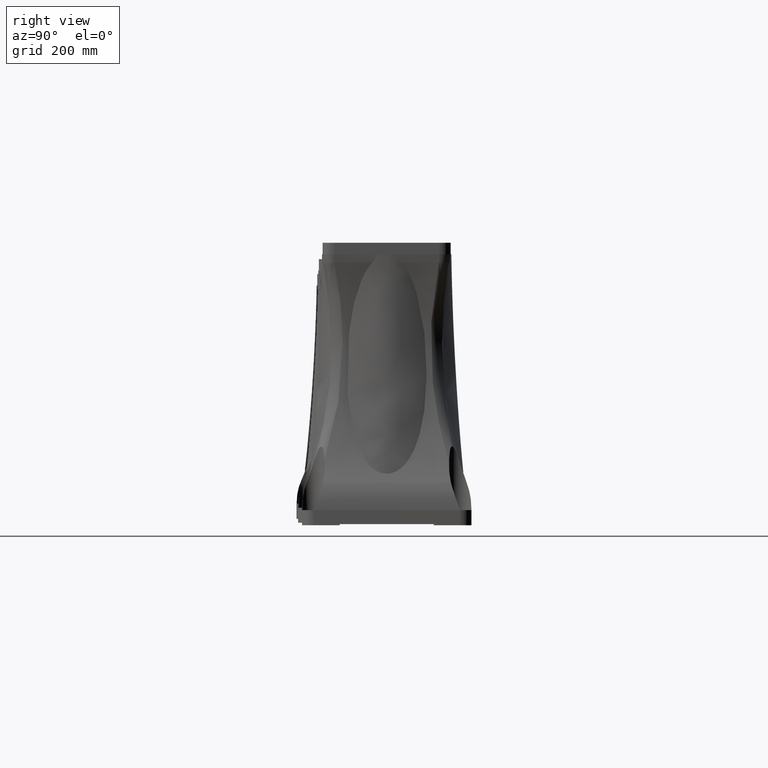
[diagram: clean part render]
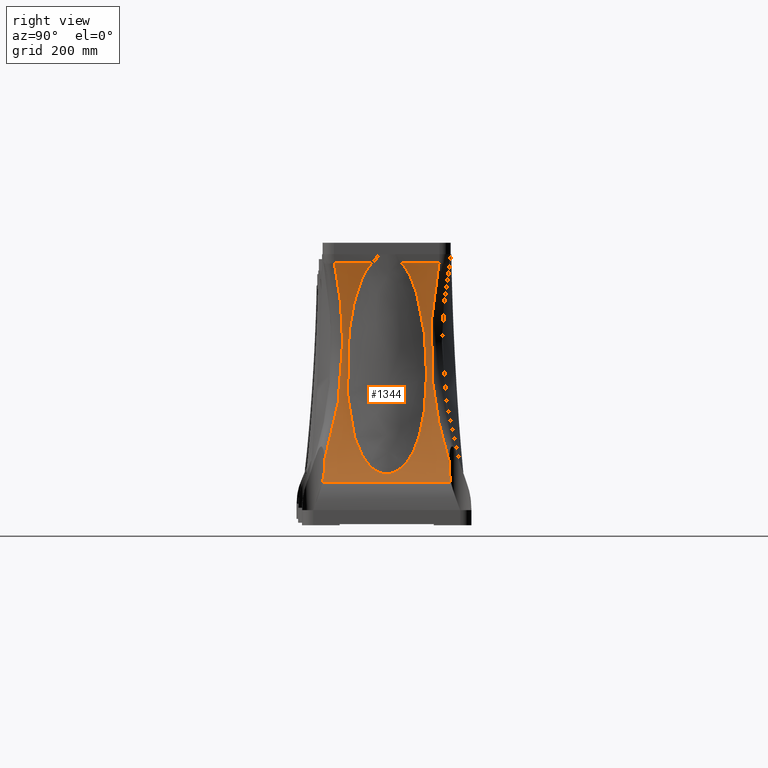
[diagram: same view with one face highlighted and labeled with its STEP entity id]
A machine part, right view. The second image highlights one B-rep face of the part: STEP entity #1344.
In plain terms, the highlighted face is a SurfaceOfExtrusion surface.
Its self-contained STEP definition (entity closure, byte-faithful):
#1344=ADVANCED_FACE('',(#2316),#2317,.F.);
#2316=FACE_OUTER_BOUND('',#7624,.T.);
#2317=SURFACE_OF_LINEAR_EXTRUSION('',#7625,#7626);
#7624=EDGE_LOOP('',(#13118,#13119,#13120,#13121,#13122,#13123,#13124,#13125));
#7625=(B_SPLINE_CURVE(3,(#13127,#13128,#13129,#13130,#13131,#13132,#13133),.UNSPECIFIED.,.T.,.F.)B_SPLINE_CURVE_WITH_KNOTS((4,3,4),(0.0,0.5,1.0),.UNSPECIFIED.)RATIONAL_B_SPLINE_CURVE((1.0,0.333333333333334,0.333333333333334,1.0,0.333333333333334,0.333333333333334,1.0))BOUNDED_CURVE()REPRESENTATION_ITEM('')GEOMETRIC_REPRESENTATION_ITEM()CURVE());
#7626=VECTOR('',#13140,1.0);
#13118=ORIENTED_EDGE('',*,*,#15293,.T.);
#13119=ORIENTED_EDGE('',*,*,#15308,.T.);
#13120=ORIENTED_EDGE('',*,*,#15311,.T.);
#13121=ORIENTED_EDGE('',*,*,#15318,.T.);
#13122=ORIENTED_EDGE('',*,*,#15319,.T.);
#13123=ORIENTED_EDGE('',*,*,#15320,.T.);
#13124=ORIENTED_EDGE('',*,*,#15321,.F.);
#13125=ORIENTED_EDGE('',*,*,#15298,.T.);
#13127=CARTESIAN_POINT('',(853.558,-260.555555555553,1949.3719357305));
#13128=CARTESIAN_POINT('',(1853.558,-260.555555555553,1949.3719357305));
#13129=CARTESIAN_POINT('',(1853.558,-260.555555555553,449.8546983205));
#13130=CARTESIAN_POINT('',(853.558,-260.555555555553,449.854698320501));
#13131=CARTESIAN_POINT('',(-146.442,-260.555555555553,449.8546983205));
#13132=CARTESIAN_POINT('',(-146.442,-260.555555555553,1949.3719357305));
#13133=CARTESIAN_POINT('',(853.558,-260.555555555553,1949.3719357305));
#13140=DIRECTION('',(0.0,1.0,0.0));
#15293=EDGE_CURVE('',#17134,#17132,#17135,.F.);
#15298=EDGE_CURVE('',#17138,#17134,#17143,.F.);
#15308=EDGE_CURVE('',#17132,#17160,#17162,.T.);
#15311=EDGE_CURVE('',#17160,#17166,#17167,.T.);
#15318=EDGE_CURVE('',#17166,#17176,#17177,.T.);
#15319=EDGE_CURVE('',#17176,#17178,#17179,.F.);
#15320=EDGE_CURVE('',#17178,#17180,#17181,.F.);
#15321=EDGE_CURVE('',#17138,#17180,#17182,.T.);
#17132=VERTEX_POINT('',#26514);
#17134=VERTEX_POINT('',#26573);
#17135=B_SPLINE_CURVE_WITH_KNOTS('',3,(#26574,#26575,#26576,#26577,#26578,#26579,#26580,#26581,#26582,#26583,#26584,#26585,#26586,#26587,#26588,#26589,#26590,#26591,#26592,#26593,#26594,#26595,#26596,#26597,#26598,#26599,#26600,#26601,#26602,#26603,#26604,#26605,#26606,#26607,#26608,#26609,#26610,#26611,#26612,#26613,#26614,#26615,#26616,#26617,#26618,#26619,#26620,#26621,#26622,#26623,#26624,#26625,#26626,#26627,#26628,#26629),.UNSPECIFIED.,.F.,.F.,(4,1,1,1,1,1,1,1,1,1,1,1,1,1,1,1,1,1,1,1,1,1,1,1,1,1,1,1,1,1,1,1,1,1,1,1,1,1,1,1,1,1,1,1,1,1,1,1,1,1,1,1,1,4),(0.0,0.00523936615068114,0.0104752539837834,0.015707610105446,0.0209363809590649,0.026161512836813,0.0313829518911641,0.0366006441464167,0.041814535510213,0.0470245717850527,0.0522306986798116,0.0574328618212337,0.0626310067654168,0.0678250790093032,0.0730150240021297,0.0782007871568701,0.0833823138616686,0.0885595494912339,0.0937324394182244,0.0989009290245992,0.104064963712945,0.109224488917779,0.114379450116807,0.119529792842168,0.124675462691622,0.156042078851387,0.187316179879086,0.218487359615092,0.24954517601576,0.312185255330251,0.374557056522024,0.437183308711097,0.499666960390337,0.562256915656478,0.624820169362127,0.687346993373282,0.749960622502728,0.781148980853829,0.812397850864699,0.843697986279204,0.875040147907703,0.88460183455568,0.894173014202658,0.903753399149375,0.913342700988941,0.922940630807617,0.932546899386447,0.942161217403643,0.951783295637604,0.961412845170515,0.971049577592337,0.98069320520515,0.990343441227694,1.0),.UNSPECIFIED.);
#17138=VERTEX_POINT('',#26649);
#17143=LINE('',#26695,#26696);
#17160=VERTEX_POINT('',#26969);
#17162=B_SPLINE_CURVE_WITH_KNOTS('',3,(#26990,#26991,#26992,#26993,#26994,#26995,#26996,#26997,#26998,#26999,#27000,#27001),.UNSPECIFIED.,.F.,.F.,(4,2,2,2,2,4),(0.0,0.0152437259500222,0.0304874519000444,0.0457311778500666,0.0533530408250775,0.0609749038000884),.UNSPECIFIED.);
#17166=VERTEX_POINT('',#27039);
#17167=LINE('',#27040,#27041);
#17176=VERTEX_POINT('',#27304);
#17177=B_SPLINE_CURVE_WITH_KNOTS('',3,(#27305,#27306,#27307,#27308,#27309,#27310,#27311,#27312,#27313,#27314,#27315,#27316),.UNSPECIFIED.,.F.,.F.,(4,2,2,2,2,4),(0.0,0.00762186297500722,0.0152437259500144,0.0304874519000289,0.0457311778500433,0.0609749038000578),.UNSPECIFIED.);
#17178=VERTEX_POINT('',#27317);
#17179=B_SPLINE_CURVE_WITH_KNOTS('',3,(#27318,#27319,#27320,#27321,#27322,#27323,#27324,#27325,#27326,#27327,#27328,#27329,#27330,#27331,#27332,#27333,#27334,#27335,#27336,#27337,#27338,#27339,#27340,#27341,#27342,#27343,#27344,#27345,#27346,#27347,#27348,#27349,#27350,#27351,#27352,#27353,#27354,#27355,#27356,#27357,#27358,#27359,#27360,#27361,#27362,#27363,#27364,#27365,#27366,#27367,#27368,#27369,#27370,#27371,#27372,#27373),.UNSPECIFIED.,.F.,.F.,(4,1,1,1,1,1,1,1,1,1,1,1,1,1,1,1,1,1,1,1,1,1,1,1,1,1,1,1,1,1,1,1,1,1,1,1,1,1,1,1,1,1,1,1,1,1,1,1,1,1,1,1,1,4),(0.0,0.00523102212601215,0.0104602604317651,0.0156876697824341,0.0209132049273656,0.0261368205095518,0.0313584710751763,0.0365781110831115,0.041795694914451,0.0470111768820225,0.052224511239893,0.0574356521928759,0.0626445539060407,0.0678511705141853,0.0730554561313237,0.0782573648601597,0.0834568508015307,0.0886538680638535,0.0938483707725489,0.0990403130794449,0.104229649172166,0.109416333283498,0.114600319700735,0.119781562775007,0.124960016930562,0.156298230692831,0.187597029324368,0.218847207300577,0.250039541950548,0.312647426874138,0.375179995296627,0.437737504298935,0.500333204479467,0.56281157232695,0.62544310902325,0.687810552620338,0.750454990188257,0.781509877101654,0.812680105182675,0.84395519686414,0.875324703760604,0.8848274638488,0.89434609207271,0.903880245061612,0.913429578872907,0.922993749234216,0.932572411786721,0.942165222329538,0.95177183706504,0.961391912844967,0.971025107417133,0.980671079672651,0.990329489893459,1.0),.UNSPECIFIED.);
#17180=VERTEX_POINT('',#27374);
#17181=LINE('',#27375,#27376);
#17182=B_SPLINE_CURVE_WITH_KNOTS('',3,(#27377,#27378,#27379,#27380,#27381,#27382,#27383,#27384,#27385,#27386,#27387,#27388,#27389,#27390,#27391,#27392,#27393,#27394,#27395,#27396,#27397,#27398,#27399,#27400,#27401,#27402,#27403,#27404,#27405,#27406,#27407,#27408,#27409,#27410,#27411,#27412,#27413,#27414,#27415,#27416,#27417,#27418,#27419,#27420,#27421,#27422,#27423,#27424,#27425,#27426,#27427,#27428,#27429,#27430,#27431,#27432,#27433,#27434,#27435,#27436,#27437,#27438,#27439,#27440,#27441,#27442,#27443,#27444,#27445,#27446,#27447,#27448,#27449,#27450,#27451,#27452,#27453,#27454,#27455,#27456,#27457,#27458,#27459,#27460,#27461,#27462,#27463,#27464,#27465,#27466,#27467,#27468,#27469,#27470,#27471,#27472,#27473,#27474,#27475,#27476,#27477,#27478,#27479,#27480,#27481,#27482,#27483,#27484,#27485,#27486,#27487,#27488,#27489,#27490,#27491,#27492,#27493,#27494,#27495,#27496,#27497,#27498,#27499,#27500,#27501,#27502,#27503,#27504,#27505,#27506,#27507,#27508,#27509,#27510,#27511,#27512,#27513,#27514,#27515,#27516,#27517,#27518,#27519,#27520,#27521,#27522,#27523,#27524,#27525,#27526,#27527,#27528,#27529,#27530,#27531,#27532,#27533,#27534,#27535,#27536,#27537,#27538,#27539,#27540,#27541,#27542,#27543,#27544,#27545,#27546,#27547,#27548,#27549,#27550),.UNSPECIFIED.,.F.,.F.,(4,2,2,2,2,2,2,2,2,2,2,2,2,2,2,2,2,2,2,2,2,2,2,2,2,2,2,2,2,2,2,2,2,2,2,2,2,2,2,2,2,2,2,2,2,2,2,2,2,2,2,2,2,2,2,2,2,2,2,2,2,2,2,2,2,2,2,2,2,2,2,2,2,2,2,2,2,2,2,2,2,2,2,2,2,2,4),(0.0,0.00981266546631495,0.0196253309326299,0.0294379963989449,0.0392506618652598,0.0490633273315748,0.0588759927978897,0.0785013237305197,0.0981266546631496,0.11775198559578,0.137377316528409,0.147189981994725,0.15700264746104,0.196253309326299,0.235503971191559,0.274754633056818,0.314005294922077,0.353255956787336,0.372881287719966,0.382693953186281,0.392506618652596,0.431757280517856,0.451382611450487,0.471007942383117,0.490633273315747,0.500445938782062,0.510258604248377,0.529883935181007,0.539696600647322,0.549509266113637,0.559321931579952,0.569134597046267,0.574040929779425,0.576494096146003,0.578947262512582,0.588759927978898,0.593666260712056,0.596119427078635,0.598572593445214,0.60838525891153,0.618197924377846,0.620651090744424,0.623104257111003,0.628010589844161,0.637823255310477,0.640276421677056,0.642729588043635,0.647635920776793,0.652542253509951,0.657448586243109,0.667261251709425,0.677073917175741,0.67952708354232,0.681980249908899,0.686886582642057,0.696699248108373,0.706511913574689,0.716324579041005,0.726137244507321,0.745762575439953,0.765387906372585,0.785013237305217,0.804638568237849,0.814451233704165,0.824263899170482,0.863514561035746,0.902765222901011,0.942015884766275,0.98126654663154,1.0205172084968,1.03032987396312,1.04014253942944,1.05976787036207,1.09901853222733,1.11864386315996,1.12845652862628,1.13826919409259,1.15789452502523,1.17751985595786,1.19714518689049,1.2069578523568,1.21186418508996,1.21677051782312,1.22658318328943,1.23639584875575,1.24620851422206,1.25602117968838),.UNSPECIFIED.);
#26514=CARTESIAN_POINT('',(398.976736790507,-175.669416553491,887.38273334859));
#26573=CARTESIAN_POINT('',(374.494363636364,-149.718101010101,1414.30120777476));
#26574=CARTESIAN_POINT('',(398.97673627064,-175.669419039438,887.382735050477));
#26575=CARTESIAN_POINT('',(398.714647091279,-175.391608110318,888.243218780783));
#26576=CARTESIAN_POINT('',(398.190642728681,-174.836170685581,889.963614982275));
#26577=CARTESIAN_POINT('',(397.413238580836,-174.01215340092,892.548716701028));
#26578=CARTESIAN_POINT('',(396.64246637583,-173.195175006409,895.13595432076));
#26579=CARTESIAN_POINT('',(395.878927697971,-172.385870919033,897.725643543584));
#26580=CARTESIAN_POINT('',(395.122465971914,-171.584071050844,900.317607816152));
#26581=CARTESIAN_POINT('',(394.373127038148,-170.789820928108,902.91180238508));
#26582=CARTESIAN_POINT('',(393.630902032048,-170.003108363343,905.508147261225));
#26583=CARTESIAN_POINT('',(392.895796208666,-169.223936617175,908.10657193845));
#26584=CARTESIAN_POINT('',(392.167810521791,-168.452304815378,910.707003432092));
#26585=CARTESIAN_POINT('',(391.446946555734,-167.688213190488,913.309369488753));
#26586=CARTESIAN_POINT('',(390.73320520657,-166.931661678845,915.913597735277));
#26587=CARTESIAN_POINT('',(390.026587036447,-166.182650296097,918.519615914593));
#26588=CARTESIAN_POINT('',(389.327092180149,-165.441179036697,921.12735183062));
#26589=CARTESIAN_POINT('',(388.634720371586,-164.707247900814,923.736733370973));
#26590=CARTESIAN_POINT('',(387.949470938207,-163.98085688709,926.347688508911));
#26591=CARTESIAN_POINT('',(387.27134280417,-163.262005994709,928.960145310377));
#26592=CARTESIAN_POINT('',(386.600334490877,-162.550695222376,931.574031941223));
#26593=CARTESIAN_POINT('',(385.93644411957,-161.846924570333,934.189276668345));
#26594=CARTESIAN_POINT('',(385.279669408624,-161.150694033305,936.805807884802));
#26595=CARTESIAN_POINT('',(384.630007690273,-160.46200362669,939.423554044921));
#26596=CARTESIAN_POINT('',(383.987455855276,-159.780853288958,942.042443934844));
#26597=CARTESIAN_POINT('',(383.352010566347,-159.107243245434,944.662405692617));
#26598=CARTESIAN_POINT('',(382.723667470117,-158.441172652421,947.28337048865));
#26599=CARTESIAN_POINT('',(381.047000681396,-156.663878668335,954.359556125516));
#26600=CARTESIAN_POINT('',(378.420691391733,-153.880216009511,965.924104454555));
#26601=CARTESIAN_POINT('',(375.029293099429,-150.285520890323,982.04130879862));
#26602=CARTESIAN_POINT('',(371.892030253249,-146.959834225362,998.20986075938));
#26603=CARTESIAN_POINT('',(368.027474769586,-142.863018039464,1019.93010986629));
#26604=CARTESIAN_POINT('',(363.811487044753,-138.394868934742,1047.30246083808));
#26605=CARTESIAN_POINT('',(359.737249057079,-134.075263747266,1080.50181765755));
#26606=CARTESIAN_POINT('',(356.666084620888,-130.820699266727,1113.90189256322));
#26607=CARTESIAN_POINT('',(354.598084046203,-128.627764793217,1147.50450911546));
#26608=CARTESIAN_POINT('',(353.540093341768,-127.507125198215,1181.19553489133));
#26609=CARTESIAN_POINT('',(353.493744985587,-127.457169677,1214.92954581105));
#26610=CARTESIAN_POINT('',(354.458920083068,-128.481085641206,1248.63818033732));
#26611=CARTESIAN_POINT('',(356.104416331175,-130.224611660001,1276.63544944363));
#26612=CARTESIAN_POINT('',(357.923509983595,-132.153147075764,1298.94972132888));
#26613=CARTESIAN_POINT('',(359.537504755342,-133.864170322732,1315.62929746225));
#26614=CARTESIAN_POINT('',(361.404758716614,-135.843317620455,1332.28055724523));
#26615=CARTESIAN_POINT('',(363.033183567679,-137.569229034069,1345.03688535234));
#26616=CARTESIAN_POINT('',(364.259058458869,-138.868686637253,1353.92884861762));
#26617=CARTESIAN_POINT('',(364.979679598449,-139.63260183135,1358.98021972598));
#26618=CARTESIAN_POINT('',(365.724278633582,-140.421947813658,1364.02926786511));
#26619=CARTESIAN_POINT('',(366.492872333201,-141.236726529849,1369.07559986755));
#26620=CARTESIAN_POINT('',(367.285472857689,-142.076937674457,1374.11881290736));
#26621=CARTESIAN_POINT('',(368.102087758063,-142.94258057396,1379.15850598436));
#26622=CARTESIAN_POINT('',(368.942724291902,-143.83365829173,1384.19427513658));
#26623=CARTESIAN_POINT('',(369.807372029046,-144.750159299552,1389.22572172949));
#26624=CARTESIAN_POINT('',(370.696068085031,-145.69212676459,1394.25242469332));
#26625=CARTESIAN_POINT('',(371.608653229846,-146.659399453408,1399.27404403228));
#26626=CARTESIAN_POINT('',(372.545683070034,-147.652579820221,1404.28993479812));
#26627=CARTESIAN_POINT('',(373.505023796384,-148.669417199197,1409.3005897494));
#26628=CARTESIAN_POINT('',(374.164511698176,-149.368463429975,1412.63397121848));
#26629=CARTESIAN_POINT('',(374.494363636364,-149.718101010101,1414.30120777477));
#26649=CARTESIAN_POINT('',(374.494363636364,-47.6635983610534,1414.30120777476));
#26695=CARTESIAN_POINT('',(374.494363636364,-260.555555555553,1414.30120777476));
#26696=VECTOR('',#31150,1.0);
#26969=CARTESIAN_POINT('',(418.583,-180.833703379798,829.87739900502));
#26990=CARTESIAN_POINT('',(398.976736790507,-175.669416553491,887.38273334859));
#26991=CARTESIAN_POINT('',(400.470530600832,-175.538898227949,882.49249901168));
#26992=CARTESIAN_POINT('',(402.000070292899,-175.517412399945,877.624243822812));
#26993=CARTESIAN_POINT('',(405.130030658948,-175.724131436443,867.934323654012));
#26994=CARTESIAN_POINT('',(406.730466043668,-175.9519597939,863.112629877312));
#26995=CARTESIAN_POINT('',(410.000947613507,-176.710449359145,853.520171918665));
#26996=CARTESIAN_POINT('',(411.671030522429,-177.240111262895,848.749330514734));
#26997=CARTESIAN_POINT('',(414.226382478751,-178.331866223973,841.636889077153));
#26998=CARTESIAN_POINT('',(415.086524591502,-178.745708438292,839.273408374791));
#26999=CARTESIAN_POINT('',(416.822913967366,-179.692928755375,834.562672933132));
#27000=CARTESIAN_POINT('',(417.699168020508,-180.226114418232,832.21540322674));
#27001=CARTESIAN_POINT('',(418.583,-180.833703379798,829.87739900502));
#27039=CARTESIAN_POINT('',(418.583,159.722592268687,829.87739900502));
#27040=CARTESIAN_POINT('',(418.583,-260.555555555553,829.87739900502));
#27041=VECTOR('',#31153,1.0);
#27304=CARTESIAN_POINT('',(398.976736790515,154.558305442379,887.382733348561));
#27305=CARTESIAN_POINT('',(418.583,159.722592268686,829.87739900502));
#27306=CARTESIAN_POINT('',(417.699168020508,159.11500330712,832.215403226738));
#27307=CARTESIAN_POINT('',(416.822913967367,158.581817644264,834.56267293313));
#27308=CARTESIAN_POINT('',(415.086524591503,157.634597327181,839.273408374786));
#27309=CARTESIAN_POINT('',(414.226382478754,157.220755112862,841.636889077146));
#27310=CARTESIAN_POINT('',(411.671030522432,156.129000151784,848.749330514724));
#27311=CARTESIAN_POINT('',(410.000947613511,155.599338248035,853.520171918652));
#27312=CARTESIAN_POINT('',(406.730466043674,154.840848682789,863.112629877294));
#27313=CARTESIAN_POINT('',(405.130030658954,154.613020325333,867.934323653992));
#27314=CARTESIAN_POINT('',(402.000070292907,154.406301288833,877.624243822788));
#27315=CARTESIAN_POINT('',(400.47053060084,154.427787116837,882.492499011653));
#27316=CARTESIAN_POINT('',(398.976736790516,154.558305442379,887.38273334856));
#27317=CARTESIAN_POINT('',(374.494363636364,128.60698989899,1414.30120777476));
#27318=CARTESIAN_POINT('',(374.494363636363,128.60698989899,1414.30120777476));
#27319=CARTESIAN_POINT('',(374.315124274658,128.416997892041,1413.39829171457));
#27320=CARTESIAN_POINT('',(373.956706673299,128.037078666934,1411.59276749576));
#27321=CARTESIAN_POINT('',(373.427845544112,127.476509417011,1408.88131641341));
#27322=CARTESIAN_POINT('',(372.905520801766,126.922877212434,1406.16820326657));
#27323=CARTESIAN_POINT('',(372.390357783,126.37684303407,1403.45322873019));
#27324=CARTESIAN_POINT('',(371.882192859013,125.838229865348,1400.73652768145));
#27325=CARTESIAN_POINT('',(371.381073256931,125.307085111078,1398.01814548292));
#27326=CARTESIAN_POINT('',(370.886989302134,124.783396075336,1395.29815145005));
#27327=CARTESIAN_POINT('',(370.399946124965,124.267166157182,1392.57660845785));
#27328=CARTESIAN_POINT('',(369.919944458342,123.758394445533,1389.85358107381));
#27329=CARTESIAN_POINT('',(369.446985780716,123.257081183559,1387.12913337353));
#27330=CARTESIAN_POINT('',(368.981070939527,122.763226305361,1384.40332951934));
#27331=CARTESIAN_POINT('',(368.522200520567,122.276829827836,1381.67623359899));
#27332=CARTESIAN_POINT('',(368.070374749868,121.797891745737,1378.94790966251));
#27333=CARTESIAN_POINT('',(367.625593520816,121.326412059779,1376.21842170611));
#27334=CARTESIAN_POINT('',(367.187856387774,120.862390769103,1373.48783367005));
#27335=CARTESIAN_POINT('',(366.757162568773,120.405827873327,1370.75620943337));
#27336=CARTESIAN_POINT('',(366.333510945617,119.956723371867,1368.02361280772));
#27337=CARTESIAN_POINT('',(365.916900065487,119.515077264614,1365.29010753781));
#27338=CARTESIAN_POINT('',(365.50732813938,119.080889549899,1362.55575727636));
#27339=CARTESIAN_POINT('',(365.104793051914,118.654160231961,1359.82062565478));
#27340=CARTESIAN_POINT('',(364.709292329095,118.234889293113,1357.08477599646));
#27341=CARTESIAN_POINT('',(364.320823262963,117.82307679755,1354.34827236343));
#27342=CARTESIAN_POINT('',(363.939382451431,117.418722504227,1351.61117563033));
#27343=CARTESIAN_POINT('',(362.934425774233,116.353427184474,1344.26321277909));
#27344=CARTESIAN_POINT('',(361.404961379649,114.732382598202,1332.28218766198));
#27345=CARTESIAN_POINT('',(359.537750046442,112.753325923284,1315.6316456778));
#27346=CARTESIAN_POINT('',(357.923649518163,111.042243950562,1298.9513673861));
#27347=CARTESIAN_POINT('',(356.104542036635,109.113598986555,1276.63718969266));
#27348=CARTESIAN_POINT('',(354.458965063944,107.370034199553,1248.63921129949));
#27349=CARTESIAN_POINT('',(353.493773128092,106.346085484348,1214.93160982549));
#27350=CARTESIAN_POINT('',(353.540076404841,106.395995796062,1181.19656872725));
#27351=CARTESIAN_POINT('',(354.597990951385,107.516558951768,1147.50648620811));
#27352=CARTESIAN_POINT('',(356.666012214904,109.709495952702,1113.90283668225));
#27353=CARTESIAN_POINT('',(359.737062806669,112.963964670118,1080.5035297767));
#27354=CARTESIAN_POINT('',(363.811381210859,117.283623248154,1047.30322650721));
#27355=CARTESIAN_POINT('',(368.027259969939,121.751702558777,1019.93138596964));
#27356=CARTESIAN_POINT('',(371.891816934056,125.848459762513,998.21103708106));
#27357=CARTESIAN_POINT('',(375.028954450736,129.174051634737,982.042983399606));
#27358=CARTESIAN_POINT('',(378.420432827438,132.768862447924,965.925261442948));
#27359=CARTESIAN_POINT('',(381.215689637925,135.731576045376,953.616736487488));
#27360=CARTESIAN_POINT('',(383.252645701983,137.890778522562,945.062613004273));
#27361=CARTESIAN_POINT('',(384.429243283288,139.138039816616,940.226544737669));
#27362=CARTESIAN_POINT('',(385.630078596888,140.411011575022,935.394254354018));
#27363=CARTESIAN_POINT('',(386.85517262824,141.70969712739,930.566185216704));
#27364=CARTESIAN_POINT('',(388.10454028739,143.034095799781,925.74279023586));
#27365=CARTESIAN_POINT('',(389.378191346375,144.384207065472,920.924520853908));
#27366=CARTESIAN_POINT('',(390.676134294218,145.76003383606,916.111832530041));
#27367=CARTESIAN_POINT('',(391.998359761242,147.16156509803,911.305173026717));
#27368=CARTESIAN_POINT('',(393.344902924279,148.58884221022,906.505023054308));
#27369=CARTESIAN_POINT('',(394.715609854293,150.041710596991,901.711744306537));
#27370=CARTESIAN_POINT('',(396.111011218996,151.520748423319,896.926146924286));
#27371=CARTESIAN_POINT('',(397.529055022839,153.023793854912,892.147366902894));
#27372=CARTESIAN_POINT('',(398.493974508474,154.046589814155,888.971608341913));
#27373=CARTESIAN_POINT('',(398.976736270632,154.558307928424,887.382735050503));
#27374=CARTESIAN_POINT('',(374.494363636364,26.5524872499408,1414.30120777476));
#27375=CARTESIAN_POINT('',(374.494363636364,-260.555555555553,1414.30120777476));
#27376=VECTOR('',#31157,1.0);
#27377=CARTESIAN_POINT('',(374.494363636364,-47.6635983610531,1414.30120777476));
#27378=CARTESIAN_POINT('',(374.031543678647,-49.9878374956427,1411.97900221349));
#27379=CARTESIAN_POINT('',(373.556017412211,-52.1602896105095,1409.55176446691));
#27380=CARTESIAN_POINT('',(372.592842053804,-56.2727507303338,1404.53510038905));
#27381=CARTESIAN_POINT('',(372.105106399623,-58.2122174485845,1401.94530635804));
#27382=CARTESIAN_POINT('',(371.126334777961,-61.9031728700429,1396.63336325561));
#27383=CARTESIAN_POINT('',(370.635257535252,-63.6544089046128,1393.9110430341));
#27384=CARTESIAN_POINT('',(369.656259894672,-66.9997740777572,1388.35469946941));
#27385=CARTESIAN_POINT('',(369.16831743434,-68.5937713623007,1385.52058690822));
#27386=CARTESIAN_POINT('',(368.200550410101,-71.6471823990411,1379.75568034491));
#27387=CARTESIAN_POINT('',(367.723936922495,-73.0964314489434,1376.84397663101));
#27388=CARTESIAN_POINT('',(366.789255921867,-75.8605156453991,1370.98019836758));
#27389=CARTESIAN_POINT('',(366.330899326884,-77.1761426597718,1368.02641889069));
#27390=CARTESIAN_POINT('',(364.985380989866,-80.9525210113285,1359.10811679844));
#27391=CARTESIAN_POINT('',(364.127885718362,-83.2441469355761,1353.08704888707));
#27392=CARTESIAN_POINT('',(362.501754181148,-87.4796839179006,1340.92536752976));
#27393=CARTESIAN_POINT('',(361.733054401674,-89.4228301195327,1334.78452170629));
#27394=CARTESIAN_POINT('',(360.291112451568,-93.0267999934274,1322.40301394548));
#27395=CARTESIAN_POINT('',(359.617838813443,-94.6872655601557,1316.16224341341));
#27396=CARTESIAN_POINT('',(358.371682087784,-97.770922128356,1303.59443185633));
#27397=CARTESIAN_POINT('',(357.798781370272,-99.1939260046936,1297.26733422619));
#27398=CARTESIAN_POINT('',(357.017683500166,-101.17459052651,1287.71919827248));
#27399=CARTESIAN_POINT('',(356.770353505863,-101.809086266829,1284.52687860881));
#27400=CARTESIAN_POINT('',(356.302203154606,-103.02981083468,1278.12397100935));
#27401=CARTESIAN_POINT('',(356.081373976605,-103.616087809319,1274.91281618108));
#27402=CARTESIAN_POINT('',(355.04771390984,-106.42464808047,1258.8671964215));
#27403=CARTESIAN_POINT('',(354.44289242578,-108.291190185666,1246.01965431341));
#27404=CARTESIAN_POINT('',(353.674869878329,-111.417717758715,1220.30968215002));
#27405=CARTESIAN_POINT('',(353.51164845773,-112.676390909405,1207.44718939608));
#27406=CARTESIAN_POINT('',(353.626894778428,-114.660252239539,1181.71077382299));
#27407=CARTESIAN_POINT('',(353.905347270053,-115.384955847085,1168.83682761084));
#27408=CARTESIAN_POINT('',(354.907235837162,-116.322881824322,1143.07864865846));
#27409=CARTESIAN_POINT('',(355.63065402064,-116.536053127053,1130.19441294415));
#27410=CARTESIAN_POINT('',(357.529464632815,-116.428763633113,1104.41482582971));
#27411=CARTESIAN_POINT('',(358.70483078275,-116.108641330295,1091.51948961673));
#27412=CARTESIAN_POINT('',(360.815355085196,-115.175317430653,1072.16591138162));
#27413=CARTESIAN_POINT('',(361.576811916103,-114.788278716428,1065.71293818476));
#27414=CARTESIAN_POINT('',(362.807350245726,-114.082709743599,1056.03032674431));
#27415=CARTESIAN_POINT('',(363.232570317067,-113.826448555327,1052.80000204043));
#27416=CARTESIAN_POINT('',(364.111092526358,-113.270916343157,1046.35016262331));
#27417=CARTESIAN_POINT('',(364.564214656396,-112.971779118493,1043.13179109132));
#27418=CARTESIAN_POINT('',(366.898712425058,-111.364175693595,1027.07353076157));
#27419=CARTESIAN_POINT('',(368.98690290995,-109.723946319036,1014.33372604761));
#27420=CARTESIAN_POINT('',(372.440651804352,-106.592188058125,995.40834922448));
#27421=CARTESIAN_POINT('',(373.645452350419,-105.435626660506,989.1307436644));
#27422=CARTESIAN_POINT('',(376.159961454467,-102.861246932924,976.643471765533));
#27423=CARTESIAN_POINT('',(377.469684355126,-101.443614932035,970.433773703577));
#27424=CARTESIAN_POINT('',(380.191054382692,-98.298001095152,958.09082424378));
#27425=CARTESIAN_POINT('',(381.602727258011,-96.5703671528248,951.95751342243));
#27426=CARTESIAN_POINT('',(383.793406168994,-93.6936236501704,942.823970116744));
#27427=CARTESIAN_POINT('',(384.536225633629,-92.686298657986,939.78905634953));
#27428=CARTESIAN_POINT('',(386.03831068198,-90.5746352267108,933.771577535265));
#27429=CARTESIAN_POINT('',(386.798336573354,-89.4693575678796,930.785777461158));
#27430=CARTESIAN_POINT('',(389.102318349647,-85.9883483615167,921.903398294668));
#27431=CARTESIAN_POINT('',(390.67048928634,-83.4493935316487,916.081109662302));
#27432=CARTESIAN_POINT('',(393.054473969582,-79.2190257838748,907.531585224093));
#27433=CARTESIAN_POINT('',(393.855470559328,-77.7357820753952,904.708824891911));
#27434=CARTESIAN_POINT('',(395.452529045195,-74.6278551500262,899.172688436845));
#27435=CARTESIAN_POINT('',(396.249665254343,-73.0015090912048,896.455348783978));
#27436=CARTESIAN_POINT('',(397.834707132297,-69.5830126727102,891.135046857403));
#27437=CARTESIAN_POINT('',(398.622637405556,-67.7909633808733,888.532020597717));
#27438=CARTESIAN_POINT('',(400.181037466913,-64.0131071768163,883.457612177838));
#27439=CARTESIAN_POINT('',(400.951551232521,-62.0274840685355,880.986113419263));
#27440=CARTESIAN_POINT('',(402.085955627783,-58.8744352751242,877.395801456598));
#27441=CARTESIAN_POINT('',(402.460503736527,-57.7942141125498,876.218584878132));
#27442=CARTESIAN_POINT('',(403.015601102833,-56.1251514597606,874.485164070789));
#27443=CARTESIAN_POINT('',(403.19960743831,-55.560331712401,873.912466930799));
#27444=CARTESIAN_POINT('',(403.563472645664,-54.4187333036099,872.783567249454));
#27445=CARTESIAN_POINT('',(403.743525821482,-53.841384826065,872.226755659525));
#27446=CARTESIAN_POINT('',(404.633710910346,-50.9205990810568,869.482299056141));
#27447=CARTESIAN_POINT('',(405.31385649675,-48.4756501443246,867.412762729772));
#27448=CARTESIAN_POINT('',(406.270174227998,-44.6141805089523,864.532064175948));
#27449=CARTESIAN_POINT('',(406.578248116329,-43.2945659697819,863.609230437883));
#27450=CARTESIAN_POINT('',(407.021737675507,-41.2610817341086,862.287008359694));
#27451=CARTESIAN_POINT('',(407.166459102589,-40.574231271114,861.856619252022));
#27452=CARTESIAN_POINT('',(407.449187980311,-39.1814211738223,861.017722477762));
#27453=CARTESIAN_POINT('',(407.587146626625,-38.4755577184104,860.609363914123));
#27454=CARTESIAN_POINT('',(408.253562682488,-34.9248906857406,858.640950901604));
#27455=CARTESIAN_POINT('',(408.71668646396,-31.9945566311619,857.286650907942));
#27456=CARTESIAN_POINT('',(409.477417178098,-25.9312357663603,855.072920203636));
#27457=CARTESIAN_POINT('',(409.775194984419,-22.7984792465798,854.21292124108));
#27458=CARTESIAN_POINT('',(410.022441776745,-18.7337305996047,853.500115474043));
#27459=CARTESIAN_POINT('',(410.065570983813,-17.9129017763078,853.375885985489));
#27460=CARTESIAN_POINT('',(410.13782725089,-16.2779828818541,853.167856540418));
#27461=CARTESIAN_POINT('',(410.167136807462,-15.461175666803,853.083530239451));
#27462=CARTESIAN_POINT('',(410.234752679253,-13.0126922435079,852.889041515459));
#27463=CARTESIAN_POINT('',(410.252753393258,-11.3829528406319,852.83732387404));
#27464=CARTESIAN_POINT('',(410.226400897549,-6.50138807371655,852.913080174032));
#27465=CARTESIAN_POINT('',(410.10179883596,-3.25719461526722,853.270771866107));
#27466=CARTESIAN_POINT('',(409.813505960216,0.785303464206906,854.102809558474));
#27467=CARTESIAN_POINT('',(409.749258058602,1.59193793248277,854.288386798199));
#27468=CARTESIAN_POINT('',(409.609277862016,3.18637312668751,854.693205493491));
#27469=CARTESIAN_POINT('',(409.5333975267,3.97635043268996,854.912874163802));
#27470=CARTESIAN_POINT('',(409.288927410694,6.32544703044915,855.621588692952));
#27471=CARTESIAN_POINT('',(409.103527762864,7.86375795270983,856.160277905915));
#27472=CARTESIAN_POINT('',(408.691847049499,10.8888537887967,857.360838728305));
#27473=CARTESIAN_POINT('',(408.465560873222,12.3756317204076,858.022727177018));
#27474=CARTESIAN_POINT('',(407.975496628043,15.3008448787614,859.462372210088));
#27475=CARTESIAN_POINT('',(407.710856967841,16.7429303053938,860.242706215648));
#27476=CARTESIAN_POINT('',(406.87800897288,20.9397545421596,862.710476422597));
#27477=CARTESIAN_POINT('',(406.268373073697,23.5856939393867,864.532004580453));
#27478=CARTESIAN_POINT('',(404.968254645031,28.6314834131671,868.463069121914));
#27479=CARTESIAN_POINT('',(404.277619600543,31.030951983404,870.573043046922));
#27480=CARTESIAN_POINT('',(403.376016233002,33.8999260390841,873.364565621954));
#27481=CARTESIAN_POINT('',(403.193765813669,34.4671688698031,873.930611535841));
#27482=CARTESIAN_POINT('',(402.825664088187,35.5890264048286,875.077662955357));
#27483=CARTESIAN_POINT('',(402.639602562581,36.1442410072739,875.65933047909));
#27484=CARTESIAN_POINT('',(402.078765766536,37.7847078262418,877.418553585646));
#27485=CARTESIAN_POINT('',(401.700905922279,38.8462846175679,878.611663705083));
#27486=CARTESIAN_POINT('',(400.557935164486,41.9445213980844,882.246125202949));
#27487=CARTESIAN_POINT('',(399.783528974109,43.8950908516562,884.742366388702));
#27488=CARTESIAN_POINT('',(398.220263536146,47.6053359229914,889.858397456876));
#27489=CARTESIAN_POINT('',(397.431363361482,49.3648318803818,892.478295461145));
#27490=CARTESIAN_POINT('',(395.846772096349,52.720436127253,897.825503370881));
#27491=CARTESIAN_POINT('',(395.051058035594,54.3164453186499,900.552872796751));
#27492=CARTESIAN_POINT('',(393.458816520889,57.3657281164371,906.102974840136));
#27493=CARTESIAN_POINT('',(392.661721005294,58.819909960064,908.927743699179));
#27494=CARTESIAN_POINT('',(390.279916105748,62.9863371974613,917.51858812767));
#27495=CARTESIAN_POINT('',(388.721889383464,65.4755538867763,923.339094930791));
#27496=CARTESIAN_POINT('',(385.681920045688,70.0150283656179,935.12916892488));
#27497=CARTESIAN_POINT('',(384.199853817687,72.064185028913,941.099037330555));
#27498=CARTESIAN_POINT('',(381.322155966808,75.8086626049671,953.164732663673));
#27499=CARTESIAN_POINT('',(379.926466468906,77.5034877008159,959.260694710573));
#27500=CARTESIAN_POINT('',(377.228806769752,80.5979429206553,971.562698275359));
#27501=CARTESIAN_POINT('',(375.926805747324,81.9973204806254,977.768808311853));
#27502=CARTESIAN_POINT('',(374.048166518288,83.9066980877913,987.151978018673));
#27503=CARTESIAN_POINT('',(373.434335188424,84.5114349442732,990.292064809274));
#27504=CARTESIAN_POINT('',(372.232003591345,85.6617145128487,996.595823657315));
#27505=CARTESIAN_POINT('',(371.643227413893,86.2074729683369,999.761162968207));
#27506=CARTESIAN_POINT('',(368.774391448225,88.7883459446227,1015.58527154061));
#27507=CARTESIAN_POINT('',(366.710586016324,90.3936110624948,1028.28067037666));
#27508=CARTESIAN_POINT('',(363.036386519244,92.9007938573348,1053.73591621518));
#27509=CARTESIAN_POINT('',(361.425977707083,93.8008968707186,1066.49582025129));
#27510=CARTESIAN_POINT('',(358.65228769628,95.0136825217967,1092.07576658703));
#27511=CARTESIAN_POINT('',(357.489000138319,95.3256460623647,1104.89583143985));
#27512=CARTESIAN_POINT('',(355.606438093555,95.4204041542652,1130.59393771567));
#27513=CARTESIAN_POINT('',(354.887157306026,95.2029888715235,1143.47198530978));
#27514=CARTESIAN_POINT('',(353.892827137709,94.2517769237627,1169.28566571433));
#27515=CARTESIAN_POINT('',(353.617767596092,93.5181437703006,1182.22129232608));
#27516=CARTESIAN_POINT('',(353.55395273453,92.2581985091698,1198.42768335404));
#27517=CARTESIAN_POINT('',(353.555219537314,91.9889529747488,1201.67037787264));
#27518=CARTESIAN_POINT('',(353.58571681756,91.4162186593581,1208.14587280609));
#27519=CARTESIAN_POINT('',(353.614937006078,91.1126051260366,1211.38034295237));
#27520=CARTESIAN_POINT('',(353.744275362489,90.1486837555684,1221.07372938079));
#27521=CARTESIAN_POINT('',(353.886068080401,89.4354195926962,1227.52264066408));
#27522=CARTESIAN_POINT('',(354.476398481427,87.068779671982,1246.82716112643));
#27523=CARTESIAN_POINT('',(355.089894614335,85.1914290970613,1259.64099192107));
#27524=CARTESIAN_POINT('',(356.333541132981,81.8238730518358,1278.76279497187));
#27525=CARTESIAN_POINT('',(356.801993836155,80.6088048580149,1285.1201434983));
#27526=CARTESIAN_POINT('',(357.584630910266,78.6267611190507,1294.62820601702));
#27527=CARTESIAN_POINT('',(357.858835069048,77.939439935739,1297.79289014579));
#27528=CARTESIAN_POINT('',(358.433721806923,76.5071193097363,1304.11225997772));
#27529=CARTESIAN_POINT('',(358.734621431151,75.7615899259521,1307.26906878856));
#27530=CARTESIAN_POINT('',(359.674897235196,73.4352257369673,1316.70509577139));
#27531=CARTESIAN_POINT('',(360.351662888038,71.7656765671531,1322.94866363701));
#27532=CARTESIAN_POINT('',(361.799483449971,68.1442395279972,1335.32684085322));
#27533=CARTESIAN_POINT('',(362.57057155639,66.1926968416635,1341.46156420318));
#27534=CARTESIAN_POINT('',(364.199707154075,61.9422907068981,1353.60073134628));
#27535=CARTESIAN_POINT('',(365.057821098927,59.6441596924867,1359.60541754733));
#27536=CARTESIAN_POINT('',(366.402293920733,55.861243311238,1368.4899804477));
#27537=CARTESIAN_POINT('',(366.859971331992,54.5439847101455,1371.43098011989));
#27538=CARTESIAN_POINT('',(367.559365891337,52.4696988342807,1375.80709204951));
#27539=CARTESIAN_POINT('',(367.794878501867,51.7610932957105,1377.26132048894));
#27540=CARTESIAN_POINT('',(368.268321262915,50.3129996291757,1380.14740723103));
#27541=CARTESIAN_POINT('',(368.506304896917,49.5733784231079,1381.57964311892));
#27542=CARTESIAN_POINT('',(369.223294272221,47.3043381935305,1385.8417176903));
#27543=CARTESIAN_POINT('',(369.705376765862,45.7249629746727,1388.63706608709));
#27544=CARTESIAN_POINT('',(370.672948401256,42.4099760176578,1394.12101895705));
#27545=CARTESIAN_POINT('',(371.158459108116,40.6744985357124,1396.80971073007));
#27546=CARTESIAN_POINT('',(372.126669529437,37.0160099011899,1402.06021460589));
#27547=CARTESIAN_POINT('',(372.609409770126,35.0932570453826,1404.62219483974));
#27548=CARTESIAN_POINT('',(373.563508383696,31.0147777684551,1409.58995833577));
#27549=CARTESIAN_POINT('',(374.034952259405,28.8596088063917,1411.99610481475));
#27550=CARTESIAN_POINT('',(374.494363636364,26.5524872499401,1414.30120777476));
#31150=DIRECTION('',(0.0,1.0,0.0));
#31153=DIRECTION('',(0.0,1.0,0.0));
#31157=DIRECTION('',(0.0,1.0,0.0));